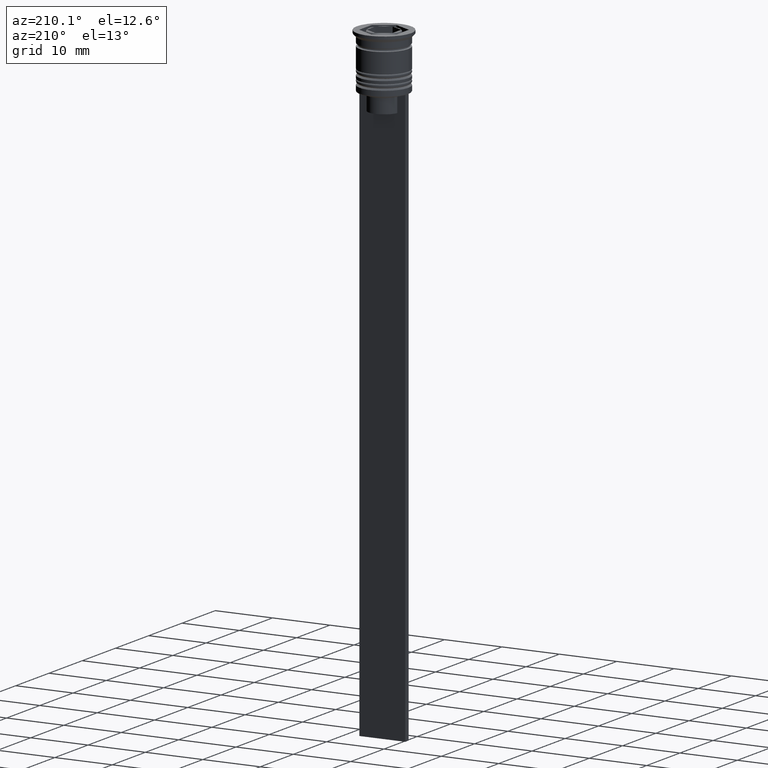
[diagram: clean part render]
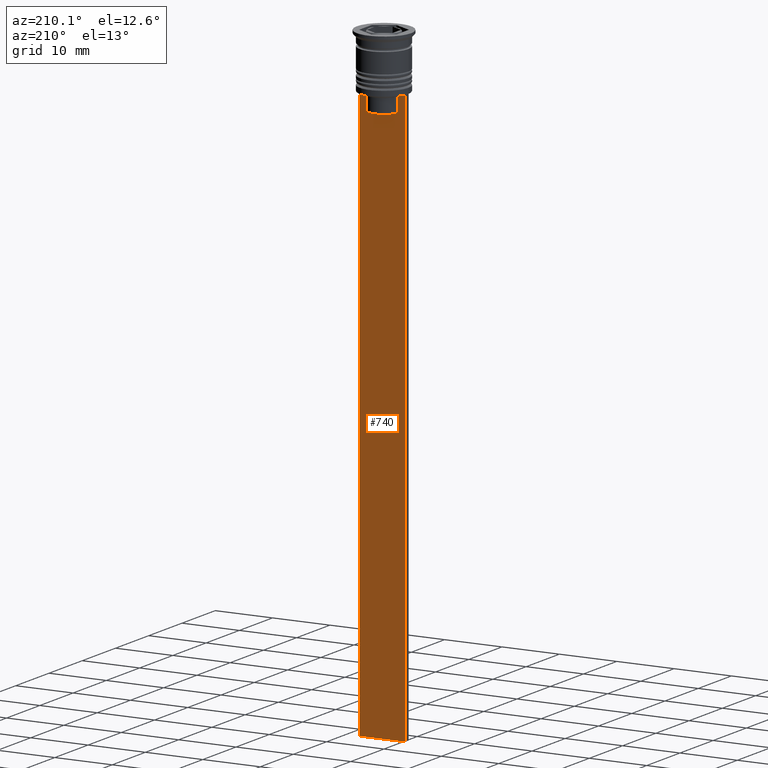
[diagram: same view with one face highlighted and labeled with its STEP entity id]
A machine part, auxiliary view. The second image highlights one B-rep face of the part: STEP entity #740.
In plain terms, the highlighted planar face has unit normal (0, -1, -0).
Its self-contained STEP definition (entity closure, byte-faithful):
#53 = CARTESIAN_POINT ( 'NONE',  ( 3.110064308016796897, 0.4999999999999995559, -9.500000000000000000 ) ) ;
#96 = ORIENTED_EDGE ( 'NONE', *, *, #1978, .T. ) ;
#164 = VERTEX_POINT ( 'NONE', #288 ) ;
#176 = CARTESIAN_POINT ( 'NONE',  ( -2.602402735934617350, 0.4999999999999995559, -10.00000000000000178 ) ) ;
#187 = VECTOR ( 'NONE', #1826, 1000.000000000000000 ) ;
#192 = CARTESIAN_POINT ( 'NONE',  ( 2.602402735934617350, 0.4999999999999995559, -10.00000000000000178 ) ) ;
#252 = VERTEX_POINT ( 'NONE', #1289 ) ;
#288 = CARTESIAN_POINT ( 'NONE',  ( 4.000000000000005329, 0.4999999999999995559, -9.500000000000000000 ) ) ;
#293 = LINE ( 'NONE', #1368, #2006 ) ;
#295 = VERTEX_POINT ( 'NONE', #2374 ) ;
#370 = VECTOR ( 'NONE', #681, 1000.000000000000000 ) ;
#405 = EDGE_LOOP ( 'NONE', ( #1259, #2047, #1947, #1806, #1335, #96, #711, #2054, #2234, #1742 ) ) ;
#431 = VERTEX_POINT ( 'NONE', #1367 ) ;
#489 = CARTESIAN_POINT ( 'NONE',  ( 4.000000000000005329, 0.4999999999999995559, -1.437742251701450202 ) ) ;
#498 = LINE ( 'NONE', #1239, #2162 ) ;
#521 = DIRECTION ( 'NONE',  ( -0.000000000000000000, -0.000000000000000000, 1.000000000000000000 ) ) ;
#564 = AXIS2_PLACEMENT_3D ( 'NONE', #1669, #1123, #2255 ) ;
#572 = EDGE_CURVE ( 'NONE', #431, #1474, #1260, .T. ) ;
#587 = EDGE_CURVE ( 'NONE', #295, #805, #2014, .T. ) ;
#617 = LINE ( 'NONE', #1882, #1881 ) ;
#643 = VERTEX_POINT ( 'NONE', #176 ) ;
#652 = CARTESIAN_POINT ( 'NONE',  ( -2.602402735934617350, 0.4999999999999995559, -12.50000000000000000 ) ) ;
#681 = DIRECTION ( 'NONE',  ( 0.000000000000000000, 0.000000000000000000, -1.000000000000000000 ) ) ;
#711 = ORIENTED_EDGE ( 'NONE', *, *, #2204, .T. ) ;
#740 = ADVANCED_FACE ( 'NONE', ( #1514 ), #2034, .F. ) ;
#772 = CARTESIAN_POINT ( 'NONE',  ( -3.110064308016796897, 0.4999999999999995559, -9.500000000000000000 ) ) ;
#805 = VERTEX_POINT ( 'NONE', #2340 ) ;
#829 = EDGE_CURVE ( 'NONE', #164, #1820, #1609, .T. ) ;
#953 = CARTESIAN_POINT ( 'NONE',  ( 2.771864055700302476, 0.4999999999999995559, -9.833582414266677674 ) ) ;
#1095 = CARTESIAN_POINT ( 'NONE',  ( 4.000000000000005329, 0.4999999999999995559, -109.5000000000000000 ) ) ;
#1097 = EDGE_CURVE ( 'NONE', #1820, #805, #1323, .T. ) ;
#1123 = DIRECTION ( 'NONE',  ( 0.000000000000000000, -1.000000000000000000, -0.000000000000000000 ) ) ;
#1152 = LINE ( 'NONE', #1879, #2319 ) ;
#1172 = EDGE_CURVE ( 'NONE', #295, #2044, #617, .T. ) ;
#1190 = DIRECTION ( 'NONE',  ( 1.000000000000000000, 0.000000000000000000, 0.000000000000000000 ) ) ;
#1239 = CARTESIAN_POINT ( 'NONE',  ( -2.602402735934617350, 0.4999999999999995559, 0.000000000000000000 ) ) ;
#1242 = CARTESIAN_POINT ( 'NONE',  ( -2.941047749529105193, 0.4999999999999995559, -9.666873766989334982 ) ) ;
#1259 = ORIENTED_EDGE ( 'NONE', *, *, #1172, .T. ) ;
#1260 = LINE ( 'NONE', #1979, #2151 ) ;
#1289 = CARTESIAN_POINT ( 'NONE',  ( 3.110064308016796897, 0.4999999999999995559, -9.500000000000000000 ) ) ;
#1323 = LINE ( 'NONE', #1095, #187 ) ;
#1335 = ORIENTED_EDGE ( 'NONE', *, *, #572, .T. ) ;
#1358 = DIRECTION ( 'NONE',  ( 1.000000000000000000, 0.000000000000000000, 0.000000000000000000 ) ) ;
#1367 = CARTESIAN_POINT ( 'NONE',  ( 2.602402735934617350, 0.4999999999999995559, -12.50000000000000000 ) ) ;
#1368 = CARTESIAN_POINT ( 'NONE',  ( 4.000000000000005329, 0.4999999999999995559, -9.500000000000000000 ) ) ;
#1395 = EDGE_CURVE ( 'NONE', #643, #2065, #498, .T. ) ;
#1420 = CARTESIAN_POINT ( 'NONE',  ( -3.110064308016796897, 0.4999999999999995559, -9.500000000000000000 ) ) ;
#1441 = DIRECTION ( 'NONE',  ( 0.000000000000000000, 0.000000000000000000, -1.000000000000000000 ) ) ;
#1474 = VERTEX_POINT ( 'NONE', #192 ) ;
#1514 = FACE_OUTER_BOUND ( 'NONE', #405, .T. ) ;
#1582 = DIRECTION ( 'NONE',  ( 1.000000000000000000, 0.000000000000000000, 0.000000000000000000 ) ) ;
#1609 = LINE ( 'NONE', #489, #370 ) ;
#1669 = CARTESIAN_POINT ( 'NONE',  ( 4.000000000000005329, 0.4999999999999995559, -1.437742251701450202 ) ) ;
#1726 = CARTESIAN_POINT ( 'NONE',  ( -2.602402735934617350, 0.4999999999999995559, -10.00000000000000178 ) ) ;
#1729 = B_SPLINE_CURVE_WITH_KNOTS ( 'NONE', 3,
 ( #1420, #1242, #1971, #1726 ),
 .UNSPECIFIED., .F., .F.,
 ( 4, 4 ),
 ( 0.005378271293598279809, 0.006090816219555997280 ),
 .UNSPECIFIED. ) ;
#1742 = ORIENTED_EDGE ( 'NONE', *, *, #587, .F. ) ;
#1794 = EDGE_CURVE ( 'NONE', #2044, #643, #1729, .T. ) ;
#1806 = ORIENTED_EDGE ( 'NONE', *, *, #2062, .T. ) ;
#1820 = VERTEX_POINT ( 'NONE', #2193 ) ;
#1826 = DIRECTION ( 'NONE',  ( -1.000000000000000000, 0.000000000000000000, 0.000000000000000000 ) ) ;
#1831 = DIRECTION ( 'NONE',  ( 0.000000000000000000, 0.000000000000000000, -1.000000000000000000 ) ) ;
#1857 = CARTESIAN_POINT ( 'NONE',  ( 2.602402735934617350, 0.4999999999999995559, -10.00000000000000178 ) ) ;
#1879 = CARTESIAN_POINT ( 'NONE',  ( 0.000000000000000000, 0.4999999999999995559, -12.50000000000000000 ) ) ;
#1881 = VECTOR ( 'NONE', #1358, 1000.000000000000000 ) ;
#1882 = CARTESIAN_POINT ( 'NONE',  ( 4.000000000000005329, 0.4999999999999995559, -9.500000000000000000 ) ) ;
#1912 = VECTOR ( 'NONE', #1831, 1000.000000000000000 ) ;
#1947 = ORIENTED_EDGE ( 'NONE', *, *, #1395, .T. ) ;
#1971 = CARTESIAN_POINT ( 'NONE',  ( -2.771866350855961780, 0.4999999999999995559, -9.833580160334840059 ) ) ;
#1978 = EDGE_CURVE ( 'NONE', #1474, #252, #2239, .T. ) ;
#1979 = CARTESIAN_POINT ( 'NONE',  ( 2.602402735934617350, 0.4999999999999995559, 0.000000000000000000 ) ) ;
#2006 = VECTOR ( 'NONE', #1582, 1000.000000000000000 ) ;
#2014 = LINE ( 'NONE', #2378, #1912 ) ;
#2034 = PLANE ( 'NONE',  #564 ) ;
#2044 = VERTEX_POINT ( 'NONE', #772 ) ;
#2047 = ORIENTED_EDGE ( 'NONE', *, *, #1794, .T. ) ;
#2054 = ORIENTED_EDGE ( 'NONE', *, *, #829, .T. ) ;
#2062 = EDGE_CURVE ( 'NONE', #2065, #431, #1152, .T. ) ;
#2065 = VERTEX_POINT ( 'NONE', #652 ) ;
#2151 = VECTOR ( 'NONE', #521, 1000.000000000000000 ) ;
#2162 = VECTOR ( 'NONE', #1441, 1000.000000000000000 ) ;
#2193 = CARTESIAN_POINT ( 'NONE',  ( 4.000000000000005329, 0.4999999999999995559, -109.5000000000000000 ) ) ;
#2204 = EDGE_CURVE ( 'NONE', #252, #164, #293, .T. ) ;
#2234 = ORIENTED_EDGE ( 'NONE', *, *, #1097, .T. ) ;
#2239 = B_SPLINE_CURVE_WITH_KNOTS ( 'NONE', 3,
 ( #1857, #953, #2272, #53 ),
 .UNSPECIFIED., .F., .F.,
 ( 4, 4 ),
 ( 0.01295151922336847637, 0.01367164596165162602 ),
 .UNSPECIFIED. ) ;
#2255 = DIRECTION ( 'NONE',  ( 0.000000000000000000, 0.000000000000000000, -1.000000000000000000 ) ) ;
#2272 = CARTESIAN_POINT ( 'NONE',  ( 2.941045828809989438, 0.4999999999999995559, -9.666875663357577864 ) ) ;
#2319 = VECTOR ( 'NONE', #1190, 1000.000000000000000 ) ;
#2340 = CARTESIAN_POINT ( 'NONE',  ( -3.999999999999994671, 0.4999999999999995559, -109.5000000000000000 ) ) ;
#2374 = CARTESIAN_POINT ( 'NONE',  ( -3.999999999999994671, 0.4999999999999997780, -9.500000000000000000 ) ) ;
#2378 = CARTESIAN_POINT ( 'NONE',  ( -3.999999999999994671, 0.4999999999999995559, -1.437742251701450202 ) ) ;